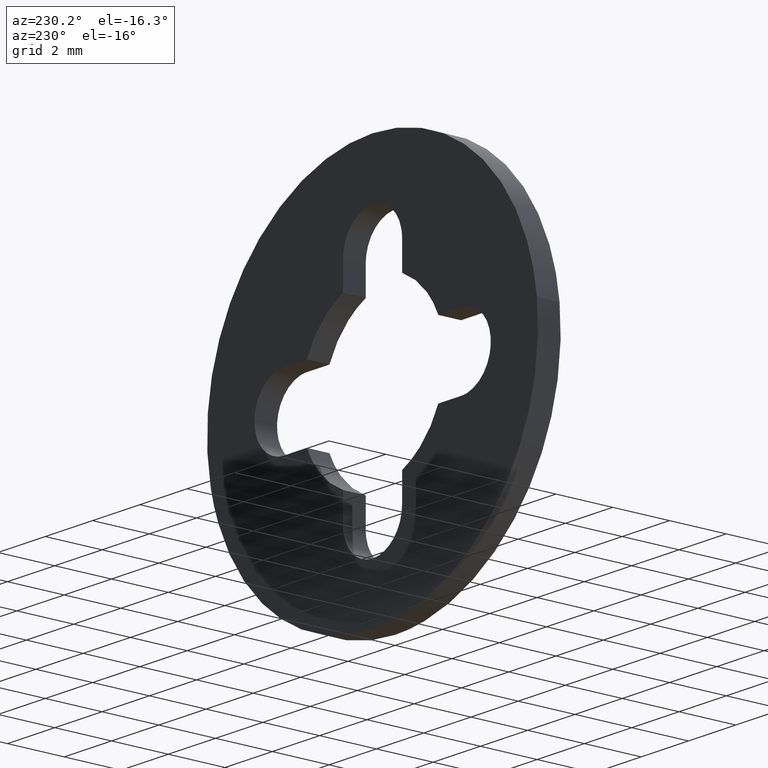
[diagram: clean part render]
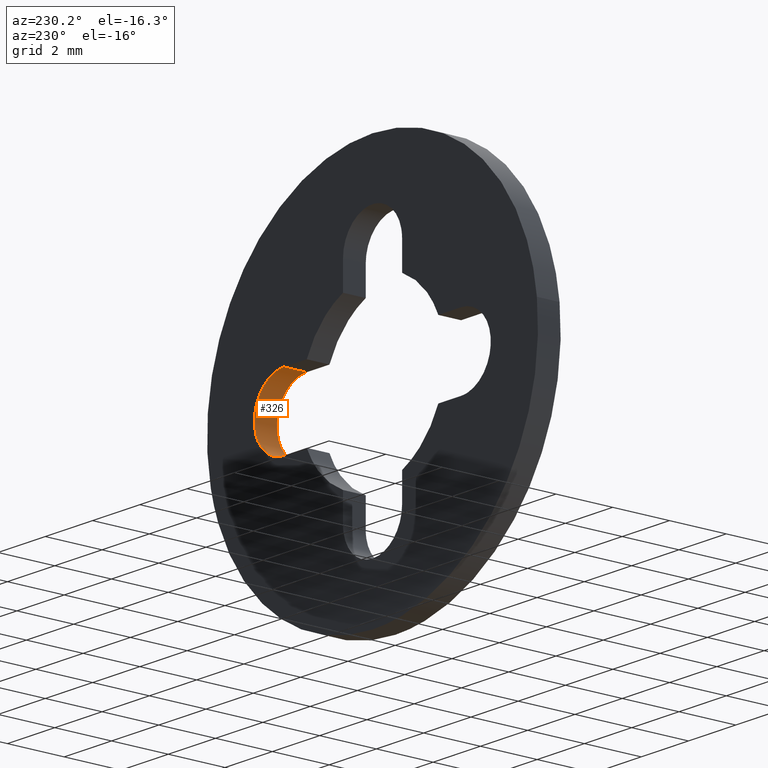
[diagram: same view with one face highlighted and labeled with its STEP entity id]
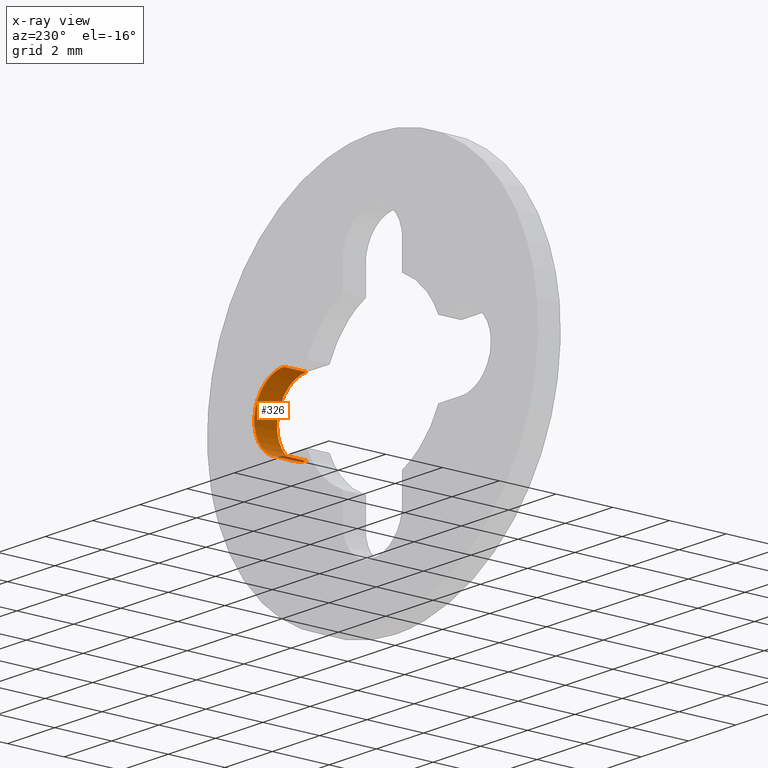
[diagram: x-ray of the same camera — body ghosted, the highlighted face saturated]
A machine part, auxiliary view. The second image highlights one B-rep face of the part: STEP entity #326.
The next image is the same camera in x-ray: the body ghosted, the highlighted face saturated — about 0% of this face is hidden behind the body in this view.
In plain terms, the highlighted face is a freeform B-spline surface patch.
Its self-contained STEP definition (entity closure, byte-faithful):
#235=CARTESIAN_POINT('',(3.750000000000000,0.0,1.250000000000000));
#236=VERTEX_POINT('',#235);
#251=CARTESIAN_POINT('',(3.750000000000000,0.800000000000023,1.250000000000000));
#252=VERTEX_POINT('',#251);
#258=CARTESIAN_POINT('',(3.750000000000000,0.800000000000023,1.250000000000000));
#259=CARTESIAN_POINT('',(3.750000000000000,0.0,1.250000000000000));
#260=QUASI_UNIFORM_CURVE('',1,(#258,#259),.UNSPECIFIED.,.F.,.U.);
#261=EDGE_CURVE('',#252,#236,#260,.T.);
#266=CARTESIAN_POINT('',(3.717278814615157,0.820000000000024,1.249571656219446));
#267=CARTESIAN_POINT('',(3.717278814615157,-0.020500000000001,1.249571656219446));
#268=CARTESIAN_POINT('',(5.034052591053624,0.820000000000023,1.284052591053628));
#269=CARTESIAN_POINT('',(5.034052591053624,-0.020500000000001,1.284052591053628));
#270=CARTESIAN_POINT('',(4.999571656219446,0.820000000000024,-0.032721185384839));
#271=CARTESIAN_POINT('',(4.999571656219446,-0.020500000000001,-0.032721185384839));
#272=CARTESIAN_POINT('',(4.965090721385269,0.820000000000023,-1.349494961823307));
#273=CARTESIAN_POINT('',(4.965090721385269,-0.020500000000001,-1.349494961823307));
#274=CARTESIAN_POINT('',(3.651926130340196,0.820000000000024,-1.246146667166411));
#275=CARTESIAN_POINT('',(3.651926130340196,-0.020500000000001,-1.246146667166411));
#283=(BOUNDED_SURFACE()B_SPLINE_SURFACE(1,2,((#266,#268,#270,#272,#274),(#267,#269,#271,#273,#275)),.UNSPECIFIED.,.F.,.F.,.U.)B_SPLINE_SURFACE_WITH_KNOTS((2,2),(3,2,3),(0.0,1.0),(0.0,2.148169529834180,4.296339059668361),.UNSPECIFIED.)GEOMETRIC_REPRESENTATION_ITEM()RATIONAL_B_SPLINE_SURFACE(((1.0,0.688354575693754,1.0,0.688354575693754,1.0),(1.0,0.688354575693754,1.0,0.688354575693754,1.0)))REPRESENTATION_ITEM('')SURFACE());
#284=CARTESIAN_POINT('',(3.750000000000000,0.0,-1.250000000000000));
#285=VERTEX_POINT('',#284);
#286=CARTESIAN_POINT('',(3.750000000000000,0.0,-1.250000000000000));
#287=CARTESIAN_POINT('',(5.000000000000001,0.0,-1.250000000000000));
#288=CARTESIAN_POINT('',(5.0,0.0,0.0));
#289=CARTESIAN_POINT('',(5.000000000000001,0.0,1.250000000000000));
#290=CARTESIAN_POINT('',(3.750000000000000,0.0,1.250000000000000));
#298=(BOUNDED_CURVE()B_SPLINE_CURVE(2,(#286,#287,#288,#289,#290),.UNSPECIFIED.,.F.,.U.)B_SPLINE_CURVE_WITH_KNOTS((3,2,3),(0.0,0.500000000000000,1.0),.UNSPECIFIED.)CURVE()GEOMETRIC_REPRESENTATION_ITEM()RATIONAL_B_SPLINE_CURVE((1.0,0.707106781186548,1.0,0.707106781186548,1.0))REPRESENTATION_ITEM(''));
#299=EDGE_CURVE('',#285,#236,#298,.T.);
#300=ORIENTED_EDGE('',*,*,#299,.T.);
#301=ORIENTED_EDGE('',*,*,#261,.F.);
#302=CARTESIAN_POINT('',(3.750000000000000,0.800000000000023,-1.250000000000000));
#303=VERTEX_POINT('',#302);
#304=CARTESIAN_POINT('',(3.750000000000000,0.800000000000023,-1.250000000000000));
#305=CARTESIAN_POINT('',(5.000000000000001,0.800000000000023,-1.250000000000000));
#306=CARTESIAN_POINT('',(5.0,0.800000000000023,0.0));
#307=CARTESIAN_POINT('',(5.000000000000001,0.800000000000023,1.250000000000000));
#308=CARTESIAN_POINT('',(3.750000000000000,0.800000000000023,1.250000000000000));
#316=(BOUNDED_CURVE()B_SPLINE_CURVE(2,(#304,#305,#306,#307,#308),.UNSPECIFIED.,.F.,.U.)B_SPLINE_CURVE_WITH_KNOTS((3,2,3),(0.0,0.500000000000000,1.0),.UNSPECIFIED.)CURVE()GEOMETRIC_REPRESENTATION_ITEM()RATIONAL_B_SPLINE_CURVE((1.0,0.707106781186548,1.0,0.707106781186548,1.0))REPRESENTATION_ITEM(''));
#317=EDGE_CURVE('',#303,#252,#316,.T.);
#318=ORIENTED_EDGE('',*,*,#317,.F.);
#319=CARTESIAN_POINT('',(3.750000000000000,0.800000000000023,-1.250000000000000));
#320=CARTESIAN_POINT('',(3.750000000000000,0.0,-1.250000000000000));
#321=QUASI_UNIFORM_CURVE('',1,(#319,#320),.UNSPECIFIED.,.F.,.U.);
#322=EDGE_CURVE('',#303,#285,#321,.T.);
#323=ORIENTED_EDGE('',*,*,#322,.T.);
#324=EDGE_LOOP('',(#300,#301,#318,#323));
#325=FACE_OUTER_BOUND('',#324,.T.);
#326=ADVANCED_FACE('',(#325),#283,.F.);